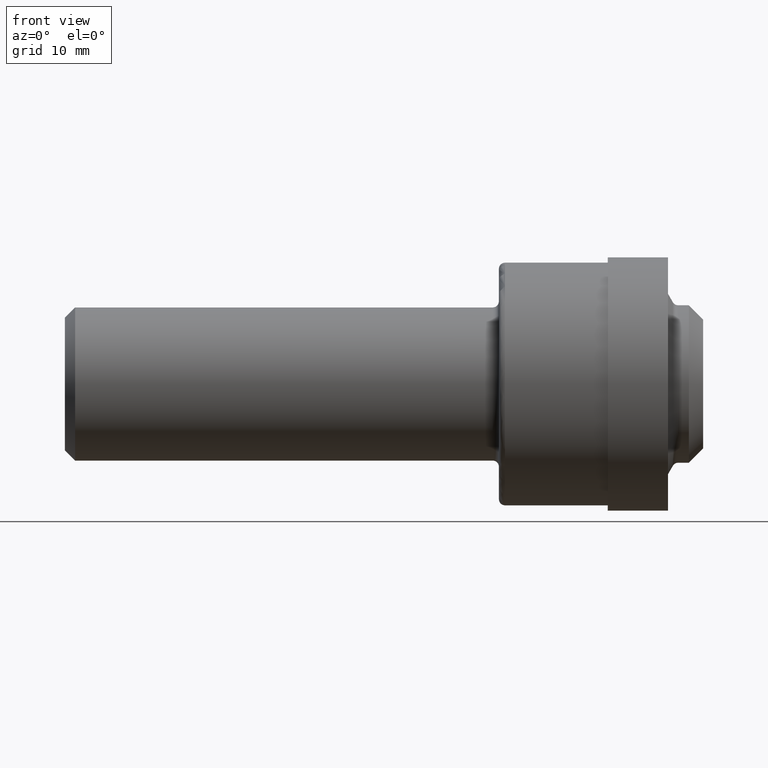
[diagram: clean part render]
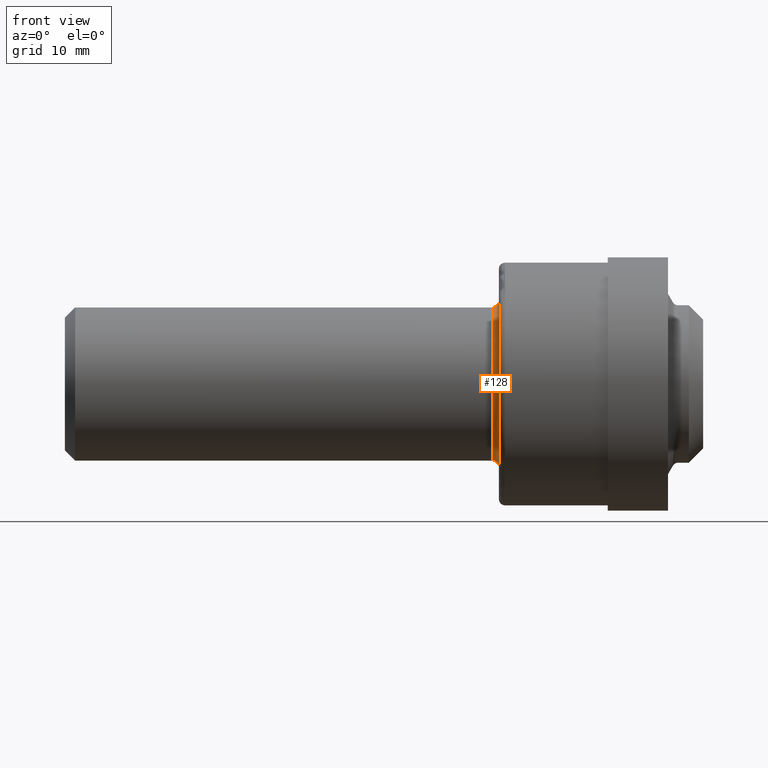
[diagram: same view with one face highlighted and labeled with its STEP entity id]
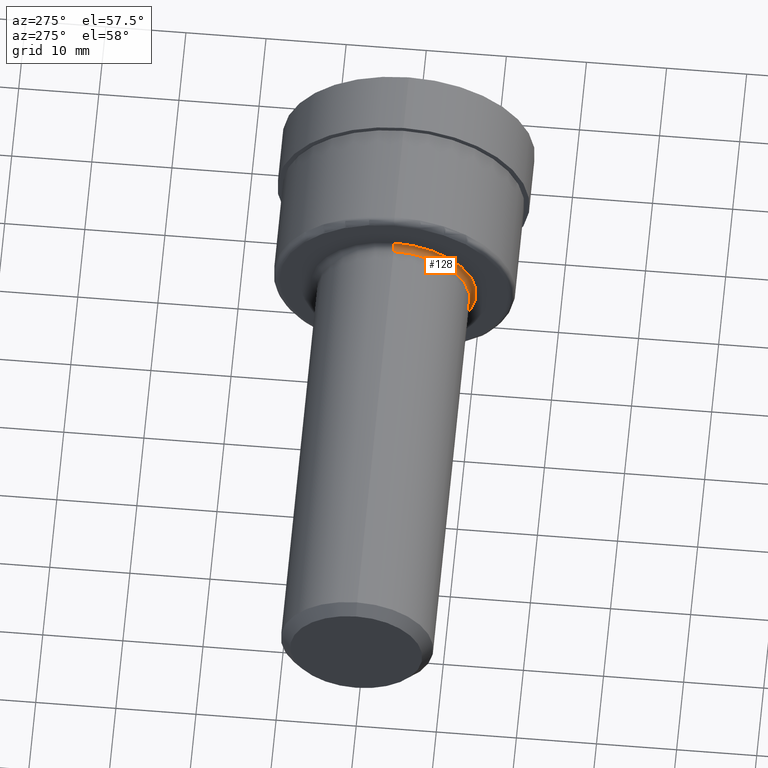
[diagram: same view with one face highlighted and labeled with its STEP entity id]
A machine part, front view. The second image highlights one B-rep face of the part: STEP entity #128.
A second angle (auxiliary view) of the same face is appended — the face is thin or edge-on in the first view.
In plain terms, the highlighted toroidal blend (fillet) surface has major radius 10.2832 mm and minor (blend) radius 0.762 mm.
Its self-contained STEP definition (entity closure, byte-faithful):
#10 = DIRECTION ( 'NONE',  ( 0.000000000000000000, 0.000000000000000000, 1.000000000000000000 ) ) ;
#17 = AXIS2_PLACEMENT_3D ( 'NONE', #394, #274, #339 ) ;
#19 = CIRCLE ( 'NONE', #643, 0.4048500000000000432 ) ;
#23 = VERTEX_POINT ( 'NONE', #107 ) ;
#46 = CARTESIAN_POINT ( 'NONE',  ( 2.094999999999999751, 0.000000000000000000, 0.4048500000000000432 ) ) ;
#49 = CIRCLE ( 'NONE', #146, 0.3748500000000000165 ) ;
#57 = DIRECTION ( 'NONE',  ( 0.000000000000000000, -1.000000000000000000, 0.000000000000000000 ) ) ;
#60 = DIRECTION ( 'NONE',  ( 0.000000000000000000, 0.000000000000000000, 1.000000000000000000 ) ) ;
#107 = CARTESIAN_POINT ( 'NONE',  ( 2.094999999999999751, 4.774285546475956938E-17, -0.3748500000000000165 ) ) ;
#124 = AXIS2_PLACEMENT_3D ( 'NONE', #46, #57, #590 ) ;
#128 = ADVANCED_FACE ( 'NONE', ( #502 ), #173, .F. ) ;
#139 = CIRCLE ( 'NONE', #17, 0.02999999999999995379 ) ;
#140 = VERTEX_POINT ( 'NONE', #600 ) ;
#146 = AXIS2_PLACEMENT_3D ( 'NONE', #585, #579, #10 ) ;
#148 = VERTEX_POINT ( 'NONE', #345 ) ;
#173 = TOROIDAL_SURFACE ( 'NONE', #312, 0.4048500000000000432, 0.02999999999999998848 ) ;
#238 = DIRECTION ( 'NONE',  ( -1.000000000000000000, -0.000000000000000000, -0.000000000000000000 ) ) ;
#249 = ORIENTED_EDGE ( 'NONE', *, *, #289, .F. ) ;
#256 = CARTESIAN_POINT ( 'NONE',  ( 2.125000000000000000, 4.957982566348060745E-17, -0.4048500000000000432 ) ) ;
#274 = DIRECTION ( 'NONE',  ( -0.000000000000000000, 1.000000000000000000, 1.224646799147353207E-16 ) ) ;
#287 = DIRECTION ( 'NONE',  ( -1.000000000000000000, -0.000000000000000000, -0.000000000000000000 ) ) ;
#288 = CIRCLE ( 'NONE', #124, 0.02999999999999995379 ) ;
#289 = EDGE_CURVE ( 'NONE', #148, #140, #288, .T. ) ;
#294 = CARTESIAN_POINT ( 'NONE',  ( 2.094999999999999751, 0.000000000000000000, 0.000000000000000000 ) ) ;
#312 = AXIS2_PLACEMENT_3D ( 'NONE', #294, #287, #498 ) ;
#339 = DIRECTION ( 'NONE',  ( 0.000000000000000000, -1.224646799147354933E-16, 1.000000000000000000 ) ) ;
#345 = CARTESIAN_POINT ( 'NONE',  ( 2.094999999999999751, 0.000000000000000000, 0.3748500000000000165 ) ) ;
#349 = EDGE_CURVE ( 'NONE', #23, #148, #49, .T. ) ;
#392 = EDGE_CURVE ( 'NONE', #23, #525, #139, .T. ) ;
#394 = CARTESIAN_POINT ( 'NONE',  ( 2.094999999999999751, 4.957982566348060745E-17, -0.4048500000000000432 ) ) ;
#498 = DIRECTION ( 'NONE',  ( 0.000000000000000000, 0.000000000000000000, 1.000000000000000000 ) ) ;
#502 = FACE_OUTER_BOUND ( 'NONE', #547, .T. ) ;
#525 = VERTEX_POINT ( 'NONE', #256 ) ;
#547 = EDGE_LOOP ( 'NONE', ( #593, #627, #672, #249 ) ) ;
#549 = CARTESIAN_POINT ( 'NONE',  ( 2.125000000000000000, 0.000000000000000000, 0.000000000000000000 ) ) ;
#579 = DIRECTION ( 'NONE',  ( -1.000000000000000000, -0.000000000000000000, -0.000000000000000000 ) ) ;
#585 = CARTESIAN_POINT ( 'NONE',  ( 2.094999999999999751, 0.000000000000000000, 0.000000000000000000 ) ) ;
#590 = DIRECTION ( 'NONE',  ( 0.000000000000000000, 0.000000000000000000, -1.000000000000000000 ) ) ;
#593 = ORIENTED_EDGE ( 'NONE', *, *, #349, .F. ) ;
#600 = CARTESIAN_POINT ( 'NONE',  ( 2.125000000000000000, 0.000000000000000000, 0.4048500000000000432 ) ) ;
#616 = EDGE_CURVE ( 'NONE', #525, #140, #19, .T. ) ;
#627 = ORIENTED_EDGE ( 'NONE', *, *, #392, .T. ) ;
#643 = AXIS2_PLACEMENT_3D ( 'NONE', #549, #238, #60 ) ;
#672 = ORIENTED_EDGE ( 'NONE', *, *, #616, .T. ) ;